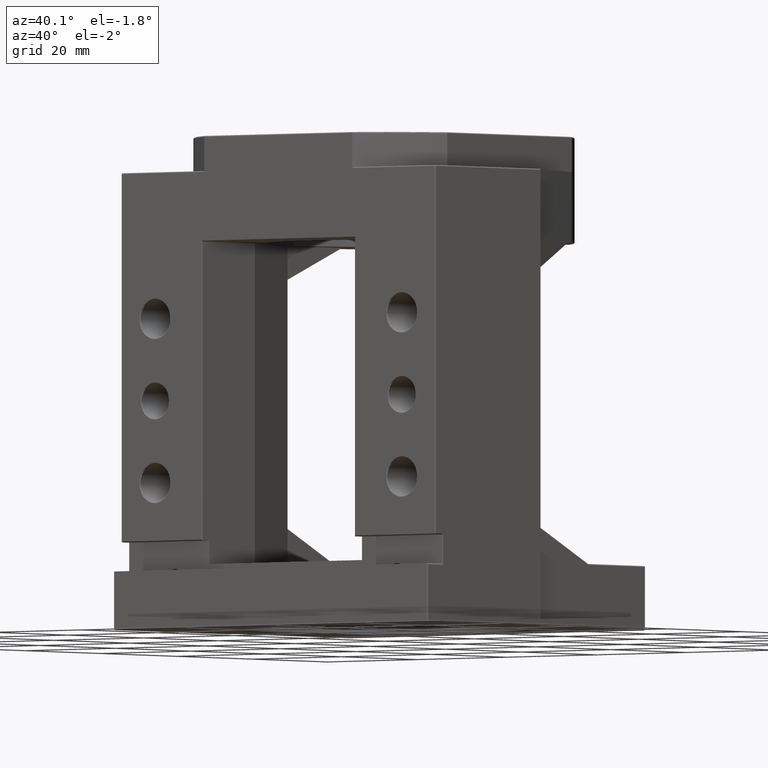
[diagram: clean part render]
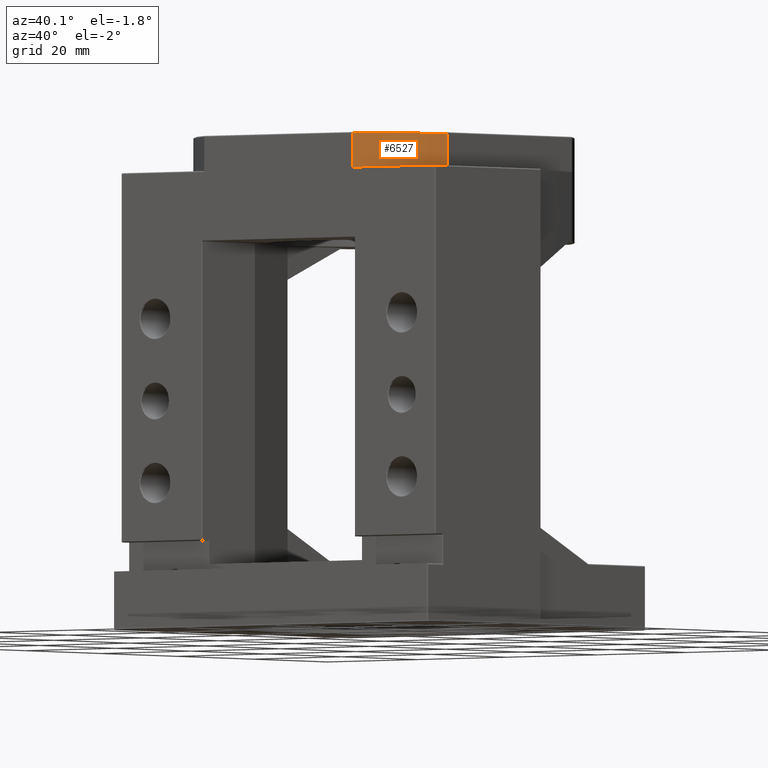
[diagram: same view with one face highlighted and labeled with its STEP entity id]
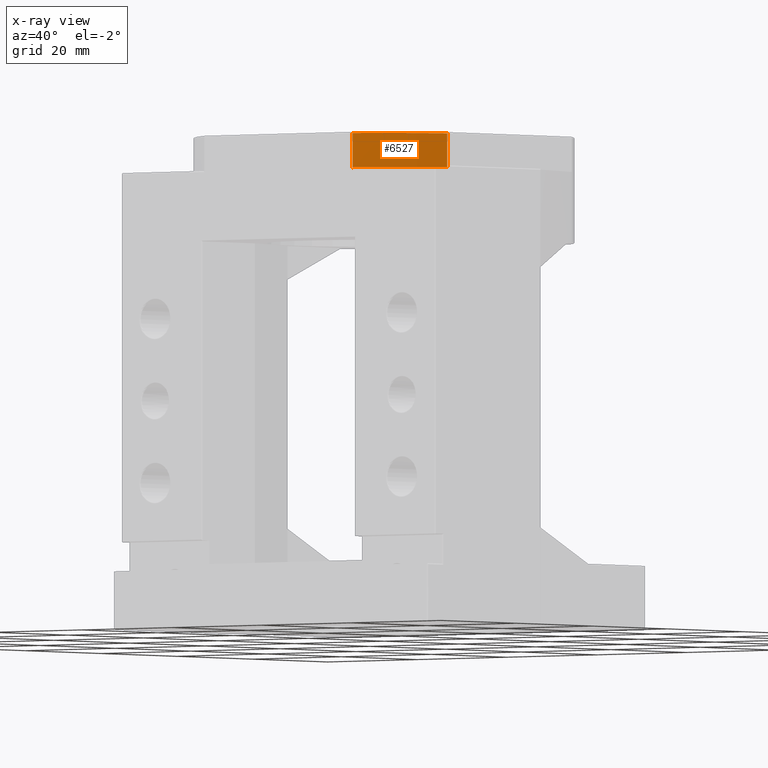
[diagram: x-ray of the same camera — body ghosted, the highlighted face saturated]
A machine part, auxiliary view. The second image highlights one B-rep face of the part: STEP entity #6527.
The next image is the same camera in x-ray: the body ghosted, the highlighted face saturated — about 0% of this face is hidden behind the body in this view.
In plain terms, the highlighted cylindrical surface (partial cylindrical patch) has radius 32.5 mm, axis along (-0, -0, 1).
Its self-contained STEP definition (entity closure, byte-faithful):
#394 = VERTEX_POINT ( 'NONE', #5740 ) ;
#395 = VERTEX_POINT ( 'NONE', #5739 ) ;
#496 = VERTEX_POINT ( 'NONE', #5790 ) ;
#561 = VERTEX_POINT ( 'NONE', #3236 ) ;
#562 = VERTEX_POINT ( 'NONE', #3138 ) ;
#785 = EDGE_LOOP ( 'NONE', ( #996, #998, #997, #999, #1000 ) ) ;
#996 = ORIENTED_EDGE ( 'NONE', *, *, #4252, .T. ) ;
#997 = ORIENTED_EDGE ( 'NONE', *, *, #5605, .T. ) ;
#998 = ORIENTED_EDGE ( 'NONE', *, *, #4187, .T. ) ;
#999 = ORIENTED_EDGE ( 'NONE', *, *, #4297, .F. ) ;
#1000 = ORIENTED_EDGE ( 'NONE', *, *, #4331, .F. ) ;
#1314 = LINE ( 'NONE', #3128, #3008 ) ;
#1413 = LINE ( 'NONE', #1992, #4580 ) ;
#1834 = FACE_OUTER_BOUND ( 'NONE', #785, .T. ) ;
#1835 = CYLINDRICAL_SURFACE ( 'NONE', #5352, 32.50000000000000000 ) ;
#1992 = CARTESIAN_POINT ( 'NONE',  ( 27.99999999999999300, -16.50000000000001100, -23.98015153751857700 ) ) ;
#1993 = DIRECTION ( 'NONE',  ( 0.0000000000000000000, 0.0000000000000000000, -1.000000000000000000 ) ) ;
#2516 = CARTESIAN_POINT ( 'NONE',  ( 16.54719296820323700, -27.97213622291020800, 72.40182887981032400 ) ) ;
#2517 = CARTESIAN_POINT ( 'NONE',  ( 16.58638638462436200, -27.94895097100684100, 72.44102229622915000 ) ) ;
#2518 = CARTESIAN_POINT ( 'NONE',  ( 16.63506425549289600, -27.92002668879230500, 72.46331913844730400 ) ) ;
#2519 = CARTESIAN_POINT ( 'NONE',  ( 16.73295793179175200, -27.86146751232136900, 72.49313542382130000 ) ) ;
#2520 = CARTESIAN_POINT ( 'NONE',  ( 16.78385925519905800, -27.83083924416392900, 72.50000000000001400 ) ) ;
#2521 = CARTESIAN_POINT ( 'NONE',  ( 16.83478541591785700, -27.79999999999999000, 72.50000000000001400 ) ) ;
#3008 = VECTOR ( 'NONE', #3029, 1000.000000000000000 ) ;
#3029 = DIRECTION ( 'NONE',  ( 0.0000000000000000000, 0.0000000000000000000, -1.000000000000000000 ) ) ;
#3128 = CARTESIAN_POINT ( 'NONE',  ( 16.54719296820323700, -27.97213622291020800, -23.98015153751857700 ) ) ;
#3138 = CARTESIAN_POINT ( 'NONE',  ( 16.54719296820323700, -27.97213622291020500, 78.30000000000001100 ) ) ;
#3236 = CARTESIAN_POINT ( 'NONE',  ( 16.54719296820323700, -27.97213622291020800, 72.40182887981032400 ) ) ;
#3866 = CARTESIAN_POINT ( 'NONE',  ( 0.0000000000000000000, 0.0000000000000000000, -23.98015153751857700 ) ) ;
#3867 = DIRECTION ( 'NONE',  ( -0.0000000000000000000, -0.0000000000000000000, 1.000000000000000000 ) ) ;
#3868 = DIRECTION ( 'NONE',  ( 1.000000000000000000, 0.0000000000000000000, 0.0000000000000000000 ) ) ;
#4187 = EDGE_CURVE ( 'NONE', #562, #561, #1314, .T. ) ;
#4252 = EDGE_CURVE ( 'NONE', #496, #562, #4436, .T. ) ;
#4297 = EDGE_CURVE ( 'NONE', #395, #394, #4515, .T. ) ;
#4331 = EDGE_CURVE ( 'NONE', #496, #395, #1413, .T. ) ;
#4436 = CIRCLE ( 'NONE', #4437, 32.50000000000000000 ) ;
#4437 = AXIS2_PLACEMENT_3D ( 'NONE', #4558, #4618, #4620 ) ;
#4515 = CIRCLE ( 'NONE', #4519, 32.50000000000000000 ) ;
#4519 = AXIS2_PLACEMENT_3D ( 'NONE', #5714, #5707, #5708 ) ;
#4558 = CARTESIAN_POINT ( 'NONE',  ( 0.0000000000000000000, 0.0000000000000000000, 78.30000000000001100 ) ) ;
#4580 = VECTOR ( 'NONE', #1993, 1000.000000000000000 ) ;
#4618 = DIRECTION ( 'NONE',  ( -0.0000000000000000000, 0.0000000000000000000, -1.000000000000000000 ) ) ;
#4620 = DIRECTION ( 'NONE',  ( -1.000000000000000000, 0.0000000000000000000, 0.0000000000000000000 ) ) ;
#5352 = AXIS2_PLACEMENT_3D ( 'NONE', #3866, #3867, #3868 ) ;
#5605 = EDGE_CURVE ( 'NONE', #561, #394, #6633, .T. ) ;
#5707 = DIRECTION ( 'NONE',  ( 0.0000000000000000000, -0.0000000000000000000, -1.000000000000000000 ) ) ;
#5708 = DIRECTION ( 'NONE',  ( 1.000000000000000000, 0.0000000000000000000, 0.0000000000000000000 ) ) ;
#5714 = CARTESIAN_POINT ( 'NONE',  ( 0.0000000000000000000, 0.0000000000000000000, 72.50000000000001400 ) ) ;
#5739 = CARTESIAN_POINT ( 'NONE',  ( 27.99999999999999300, -16.50000000000001100, 72.50000000000001400 ) ) ;
#5740 = CARTESIAN_POINT ( 'NONE',  ( 16.83478541591785700, -27.79999999999999000, 72.50000000000001400 ) ) ;
#5790 = CARTESIAN_POINT ( 'NONE',  ( 27.99999999999999300, -16.50000000000001100, 78.30000000000002600 ) ) ;
#6527 = ADVANCED_FACE ( 'NONE', ( #1834 ), #1835, .T. ) ;
#6633 = B_SPLINE_CURVE_WITH_KNOTS ( 'NONE', 3,
 ( #2516, #2517, #2518, #2519, #2520, #2521 ),
 .UNSPECIFIED., .F., .F.,
 ( 4, 2, 4 ),
 ( 0.0000000000000000000, 0.0001775990460963938600, 0.0003551980921927877300 ),
 .UNSPECIFIED. ) ;